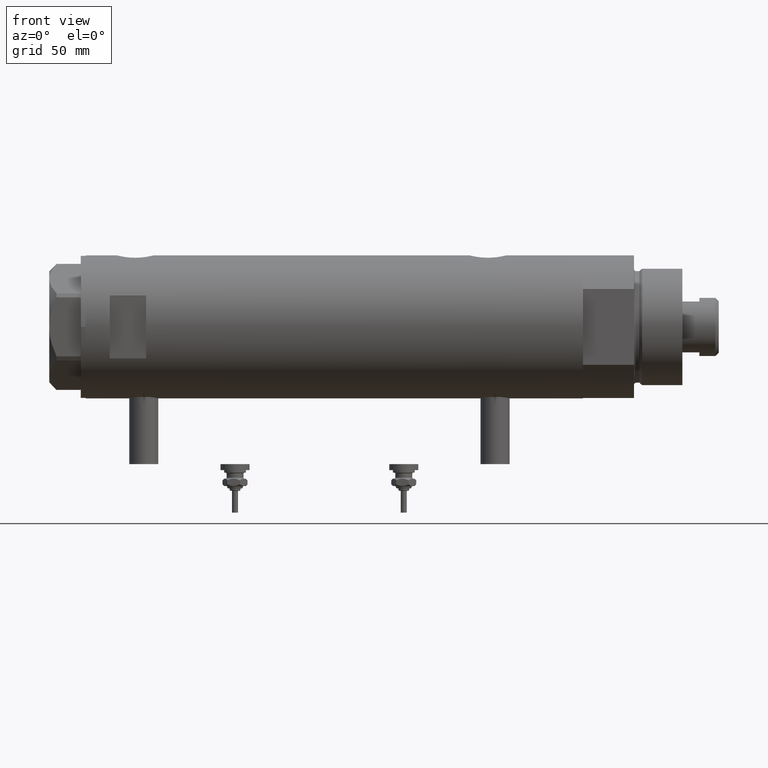
[diagram: clean part render]
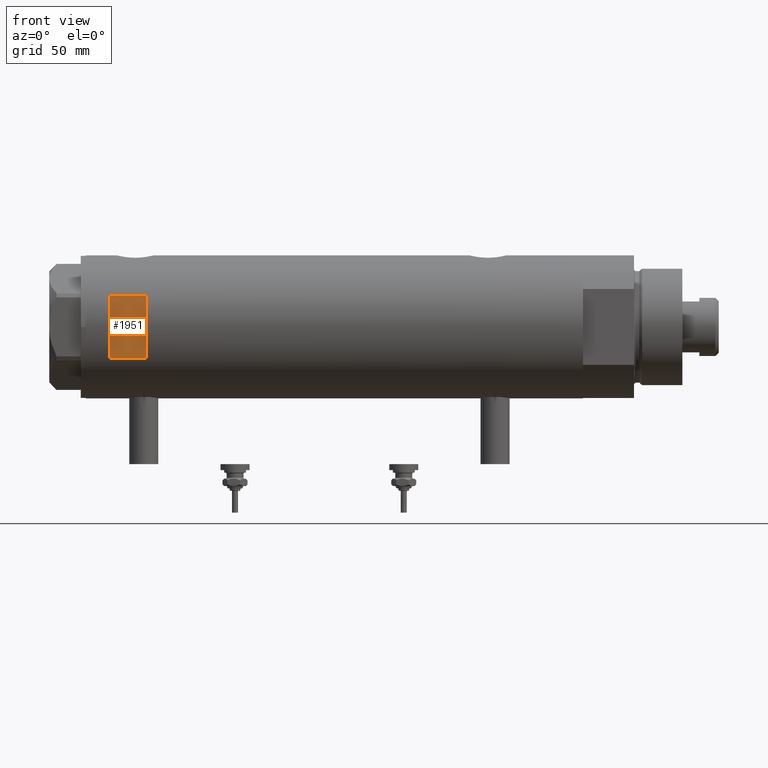
[diagram: same view with one face highlighted and labeled with its STEP entity id]
A machine part, front view. The second image highlights one B-rep face of the part: STEP entity #1951.
In plain terms, the highlighted planar face has unit normal (-0, 1, 0).
Its self-contained STEP definition (entity closure, byte-faithful):
#33 = CARTESIAN_POINT ( 'NONE',  ( 12.96148139681573319, -26.49999999999998934, 77.59999999999996589 ) ) ;
#152 = DIRECTION ( 'NONE',  ( 1.000000000000000000, -0.000000000000000000, -0.000000000000000000 ) ) ;
#207 = ORIENTED_EDGE ( 'NONE', *, *, #4753, .F. ) ;
#270 = CARTESIAN_POINT ( 'NONE',  ( -12.96148139681573319, -26.49999999999998934, 77.59999999999996589 ) ) ;
#600 = LINE ( 'NONE', #2411, #1487 ) ;
#788 = VERTEX_POINT ( 'NONE', #5294 ) ;
#831 = LINE ( 'NONE', #3615, #2320 ) ;
#891 = EDGE_CURVE ( 'NONE', #3104, #3908, #3344, .T. ) ;
#974 = EDGE_CURVE ( 'NONE', #5289, #788, #831, .T. ) ;
#1223 = DIRECTION ( 'NONE',  ( 1.000000000000000000, -0.000000000000000000, -0.000000000000000000 ) ) ;
#1487 = VECTOR ( 'NONE', #152, 1000.000000000000000 ) ;
#1563 = PLANE ( 'NONE',  #1956 ) ;
#1618 = CARTESIAN_POINT ( 'NONE',  ( -12.96148139681573319, -26.49999999999998934, 92.59999999999999432 ) ) ;
#1756 = EDGE_CURVE ( 'NONE', #3908, #5289, #600, .T. ) ;
#1951 = ADVANCED_FACE ( 'NONE', ( #5663 ), #1563, .F. ) ;
#1956 = AXIS2_PLACEMENT_3D ( 'NONE', #3913, #3430, #5267 ) ;
#2320 = VECTOR ( 'NONE', #5410, 1000.000000000000000 ) ;
#2411 = CARTESIAN_POINT ( 'NONE',  ( -29.50000000000000355, -26.50000000000000355, 77.59999999999999432 ) ) ;
#2444 = CARTESIAN_POINT ( 'NONE',  ( -12.96148139681573319, -26.49999999999999645, -102.5999999999999943 ) ) ;
#2582 = LINE ( 'NONE', #3038, #5147 ) ;
#3038 = CARTESIAN_POINT ( 'NONE',  ( -29.50000000000000355, -26.50000000000000355, 92.59999999999999432 ) ) ;
#3088 = EDGE_LOOP ( 'NONE', ( #4200, #4608, #4510, #207 ) ) ;
#3104 = VERTEX_POINT ( 'NONE', #1618 ) ;
#3344 = LINE ( 'NONE', #2444, #4416 ) ;
#3430 = DIRECTION ( 'NONE',  ( 0.000000000000000000, 1.000000000000000000, 0.000000000000000000 ) ) ;
#3615 = CARTESIAN_POINT ( 'NONE',  ( 12.96148139681573319, -26.49999999999999645, -102.5999999999999943 ) ) ;
#3908 = VERTEX_POINT ( 'NONE', #270 ) ;
#3913 = CARTESIAN_POINT ( 'NONE',  ( -29.50000000000000355, -26.50000000000000355, 92.59999999999999432 ) ) ;
#4200 = ORIENTED_EDGE ( 'NONE', *, *, #891, .T. ) ;
#4416 = VECTOR ( 'NONE', #5806, 1000.000000000000000 ) ;
#4510 = ORIENTED_EDGE ( 'NONE', *, *, #974, .T. ) ;
#4608 = ORIENTED_EDGE ( 'NONE', *, *, #1756, .T. ) ;
#4753 = EDGE_CURVE ( 'NONE', #3104, #788, #2582, .T. ) ;
#5147 = VECTOR ( 'NONE', #1223, 1000.000000000000000 ) ;
#5267 = DIRECTION ( 'NONE',  ( 0.000000000000000000, -0.000000000000000000, 1.000000000000000000 ) ) ;
#5289 = VERTEX_POINT ( 'NONE', #33 ) ;
#5294 = CARTESIAN_POINT ( 'NONE',  ( 12.96148139681573319, -26.49999999999998934, 92.59999999999999432 ) ) ;
#5410 = DIRECTION ( 'NONE',  ( 0.000000000000000000, 0.000000000000000000, 1.000000000000000000 ) ) ;
#5663 = FACE_OUTER_BOUND ( 'NONE', #3088, .T. ) ;
#5806 = DIRECTION ( 'NONE',  ( -0.000000000000000000, -0.000000000000000000, -1.000000000000000000 ) ) ;